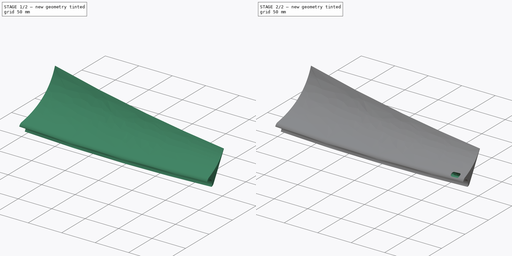
[diagram: build sequence overview — one tinted view per stage of 2, left to right]
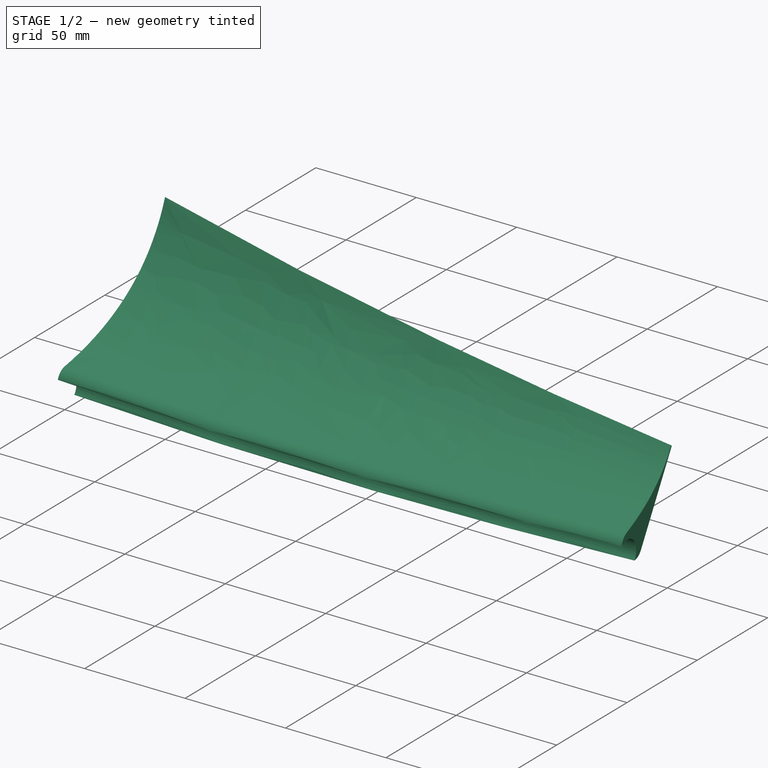
[diagram: stage 1 of 2 — iso view after this stage's code; geometry added in this stage tinted green]
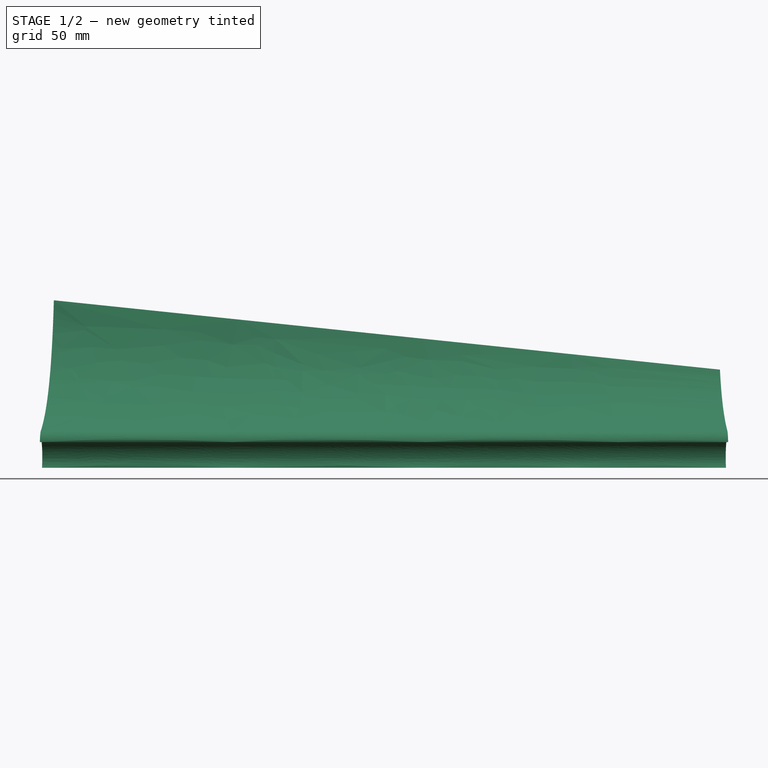
[diagram: stage 1 of 2 — front view after this stage's code; geometry added in this stage tinted green]
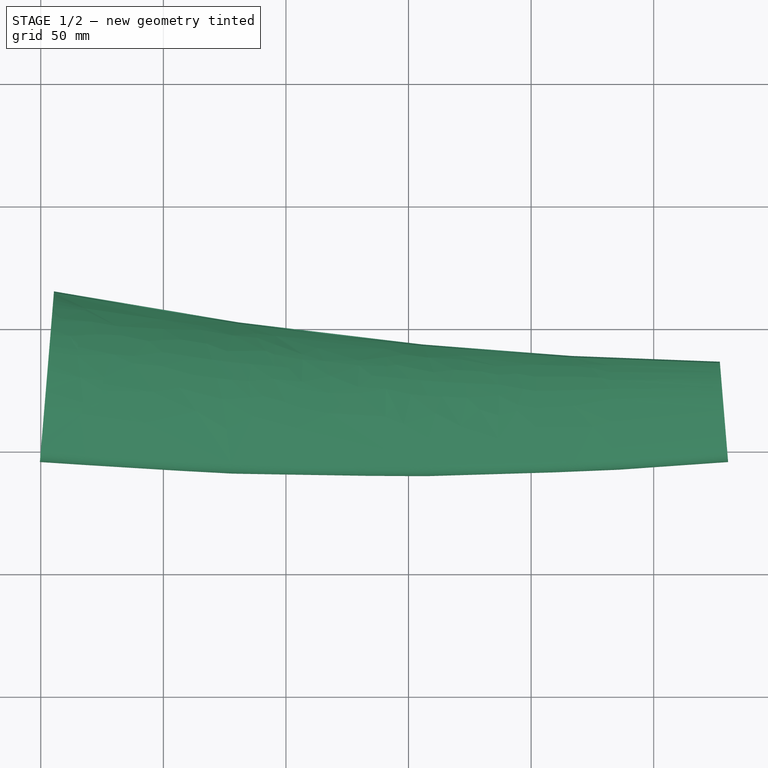
[diagram: stage 1 of 2 — top view after this stage's code; geometry added in this stage tinted green]
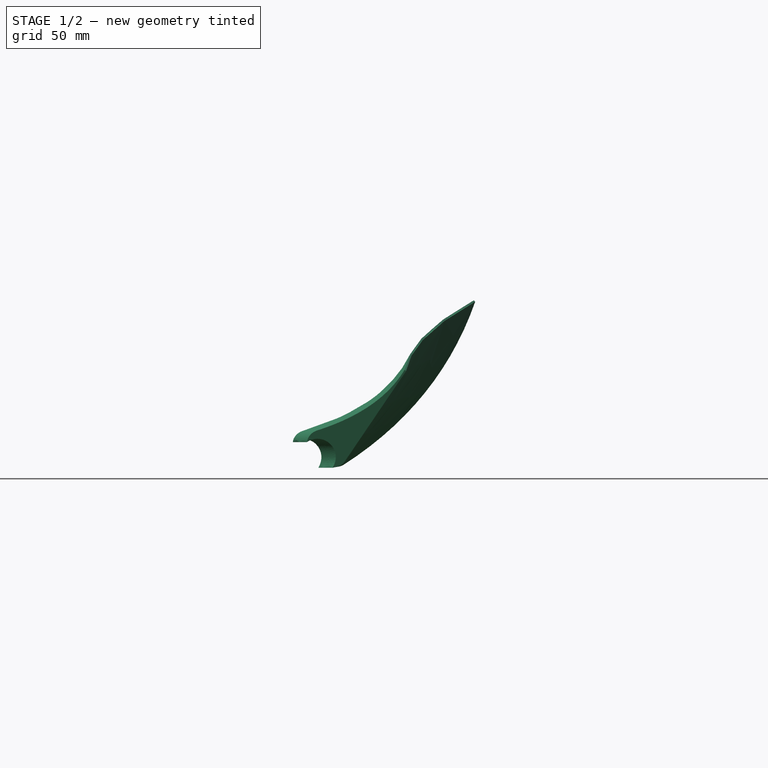
[diagram: stage 1 of 2 — right view after this stage's code; geometry added in this stage tinted green]
FCSTD DOCUMENT  (FreeCAD 0.22R38314 (Git))
Label: Radial _Airfoil_Lower
License: All rights reserved
LicenseURL: https://en.wikipedia.org/wiki/All_rights_reserved
objects: Sketcher::SketchObject×4, PartDesign::Plane×3, PartDesign::AdditivePipe×1, PartDesign::Fillet×1, PartDesign::SubtractivePipe×1, PartDesign::Body×1
note: 17 computed .brp shape members not serialized (recipe doc carries the construction recipe); baked Part::Feature solids carry a one-line shape summary decoded from their .brp

FEATURE [Sketcher::SketchObject] Sketch  label="Radial Guide"
  AttachmentSupport = -> [XY_Plane]
  FullyConstrained = false
  MapMode = 5
  sketch-geometry (1):
    g0: ArcOfCircle CenterX=140 CenterY=1671.72 CenterZ=0 NormalX=0 NormalY=0 NormalZ=1 AngleXU=0 Radius=1677.57 StartAngle=4.62884 EndAngle=4.79594
  constraints (4):
    c: Coincident(g0,g-1)
    c: PointOnObject(g0,g-1)
    c: DistanceX(g0,g0) = 280
    c: Distance(g0,g-1) = -5.85199
FEATURE [PartDesign::Plane] DatumPlane  label="InnerProfileDatum"
  AttachmentSupport = -> [Sketch]
  Length = 87.045
  MapMode = 7
  Placement = pos=(-7.11e-13,2.27e-13,0) rot=(-0.545203,0.59277,0.59277;4.1399rad)
  ResizeMode = 0
  Width = 62.2322
FEATURE [Sketcher::SketchObject] Sketch001  label="InnerProfileSketch"
  AttachmentSupport = -> [DatumPlane]
  FullyConstrained = true
  MapMode = 5
  Placement = pos=(-7.11e-13,2.27e-13,0) rot=(-0.545203,0.59277,0.59277;4.1399rad)
  sketch-geometry (25):
    g0: Circle CenterX=0 CenterY=0 CenterZ=0 NormalX=0 NormalY=0 NormalZ=1 AngleXU=0 Radius=7.5
    g1: ArcOfCircle CenterX=0 CenterY=0 CenterZ=0 NormalX=0 NormalY=0 NormalZ=1 AngleXU=0 Radius=7.5 StartAngle=0.959931 EndAngle=3.75246
    g2: LineSegment StartX=-5.3033 StartY=5.3033 StartZ=0 EndX=-7.42462 EndY=7.42462 EndZ=0
    g3: LineSegment StartX=-7.42462 StartY=7.42462 StartZ=0 EndX=-63.9932 EndY=63.9932 EndZ=0
    g4: LineSegment StartX=-35.7089 StartY=35.7089 StartZ=0 EndX=-49.851 EndY=21.5668 EndZ=0
    g5: LineSegment StartX=6.02255 StartY=8.6011 StartZ=0 EndX=4.30182 EndY=6.14364 EndZ=0
    g6: LineSegment StartX=-6.14364 StartY=-4.30182 StartZ=0 EndX=-8.6011 EndY=-6.02255 EndZ=0
    g7: LineSegment StartX=4.30182 StartY=6.14364 StartZ=0 EndX=3.64908 EndY=9.84552 EndZ=0
    g8: LineSegment StartX=-6.14364 StartY=-4.30182 StartZ=0 EndX=-9.84552 EndY=-3.64908 EndZ=0
    g9: ArcOfCircle CenterX=0 CenterY=0 CenterZ=0 NormalX=0 NormalY=0 NormalZ=1 AngleXU=0 Radius=10.5 StartAngle=0.959931 EndAngle=1.21586
    g10: ArcOfCircle CenterX=0 CenterY=0 CenterZ=0 NormalX=0 NormalY=0 NormalZ=1 AngleXU=0 Radius=10.5 StartAngle=1.21586 EndAngle=3.49653
    g11: ArcOfCircle CenterX=0 CenterY=0 CenterZ=0 NormalX=0 NormalY=0 NormalZ=1 AngleXU=0 Radius=10.5 StartAngle=3.49653 EndAngle=3.75246
    g12: LineSegment StartX=-63.9932 StartY=63.9932 StartZ=0 EndX=-64.5588 EndY=63.4275 EndZ=0
    g13: Circle CenterX=3.64908 CenterY=9.84552 CenterZ=0 NormalX=0 NormalY=0 NormalZ=1 AngleXU=0 Radius=1
    g14: Circle CenterX=-49.851 CenterY=21.5668 CenterZ=0 NormalX=0 NormalY=0 NormalZ=1 AngleXU=0 Radius=1
    g15: Circle CenterX=-63.9932 CenterY=63.9932 CenterZ=0 NormalX=0 NormalY=0 NormalZ=1 AngleXU=0 Radius=1
    g16: BSplineCurve PolesCount=3 KnotsCount=2 Degree=2 IsPeriodic=0
    g17: GeomPoint X=3.64908 Y=9.84552 Z=0
    g18: GeomPoint X=-63.9932 Y=63.9932 Z=0
    g19: Circle CenterX=-9.84552 CenterY=-3.64908 CenterZ=0 NormalX=0 NormalY=0 NormalZ=1 AngleXU=0 Radius=1
    g20: Circle CenterX=-49.851 CenterY=21.5668 CenterZ=0 NormalX=0 NormalY=0 NormalZ=1 AngleXU=0 Radius=1
    g21: Circle CenterX=-64.5588 CenterY=63.4275 CenterZ=0 NormalX=0 NormalY=0 NormalZ=1 AngleXU=0 Radius=1
    g22: BSplineCurve PolesCount=3 KnotsCount=2 Degree=2 IsPeriodic=0
    g23: GeomPoint X=-9.84552 Y=-3.64908 Z=0
    g24: GeomPoint X=-64.5588 Y=63.4275 Z=0
  constraints (59):
    c: Coincident(g0,g-1)
    c: Diameter(g0) = 15
    c: Coincident(g1,g0)
    c: PointOnObject(g1,g0)
    c: Angle(g1) = 2.79253
    c: Coincident(g9,g0)
    c: PointOnObject(g2,g1)
    c: Perpendicular(g1,g2)
    c: Angle(g-2,g2) = 0.785398
    c: Coincident(g3,g2)
    c: Parallel(g2,g3)
    c: Distance(g3,g3) = 80
    c: Symmetric(g3,g3,g4)
    c: Perpendicular(g3,g4)
    c: Distance(g4,g4) = 20
    c: Coincident(g5,g9)
    c: Coincident(g5,g1)
    c: Coincident(g6,g1)
    c: Coincident(g6,g11)
    c: Perpendicular(g1,g6)
    c: Perpendicular(g1,g5)
    c: Angle(g5,g2) = 1.39626
    c: Distance(g5,g5) = 3
    c: Coincident(g7,g1)
    c: Coincident(g8,g1)
    c: Angle(g8,g6) = 0.785398
    c: Angle(g5,g7) = 0.785398
    c: Coincident(g9,g10)
    c: Coincident(g9,g10)
    c: Coincident(g10,g11)
    c: Coincident(g10,g11)
    c: PointOnObject(g2,g10)
    c: Coincident(g10,g8)
    c: Coincident(g9,g7)
    c: Coincident(g12,g3)
    c: Perpendicular(g3,g12)
    c: Distance(g12,g12) = 0.8
    c: Weight(g13) = 1
    c: Equal(g13,g14)
    c: Equal(g13,g15)
    c: InternalAlignment(g13,g16)
    c: InternalAlignment(g14,g16)
    c: InternalAlignment(g15,g16)
    c: InternalAlignment(g17,g16)
    c: InternalAlignment(g18,g16)
    c: Coincident(g13,g7)
    c: Coincident(g14,g4)
    c: Coincident(g15,g3)
    c: Weight(g19) = 1
    c: Equal(g19,g20)
    c: Equal(g19,g21)
    c: InternalAlignment(g19,g22)
    c: InternalAlignment(g20,g22)
    c: InternalAlignment(g21,g22)
    c: InternalAlignment(g23,g22)
    c: InternalAlignment(g24,g22)
    c: Coincident(g19,g8)
    c: Coincident(g20,g4)
    c: Coincident(g21,g12)
FEATURE [PartDesign::Plane] DatumPlane001  label="OuterProfileDatum"
  AttachmentSupport = -> [Sketch]
  Length = 87.045
  MapMode = 7
  Placement = pos=(280,2.274e-13,0) rot=(0.609496,-0.560587,-0.560587;2.04685rad)
  ResizeMode = 0
  Width = 62.2322
FEATURE [Sketcher::SketchObject] Sketch002  label="OuterProfileSketch"
  AttachmentSupport = -> [DatumPlane001]
  FullyConstrained = true
  MapMode = 5
  Placement = pos=(280,2.274e-13,0) rot=(0.609496,-0.560587,-0.560587;2.04685rad)
  sketch-geometry (25):
    g0: Circle CenterX=0 CenterY=0 CenterZ=0 NormalX=0 NormalY=0 NormalZ=1 AngleXU=0 Radius=7.5
    g1: ArcOfCircle CenterX=0 CenterY=0 CenterZ=0 NormalX=0 NormalY=0 NormalZ=1 AngleXU=0 Radius=7.5 StartAngle=0.959931 EndAngle=3.75246
    g2: LineSegment StartX=-5.3033 StartY=5.3033 StartZ=0 EndX=-7.42462 EndY=7.42462 EndZ=0
    g3: LineSegment StartX=-7.42462 StartY=7.42462 StartZ=0 EndX=-35.7089 EndY=35.7089 EndZ=0
    g4: LineSegment StartX=-21.5668 StartY=21.5668 StartZ=0 EndX=-25.1023 EndY=18.0312 EndZ=0
    g5: LineSegment StartX=6.02255 StartY=8.6011 StartZ=0 EndX=4.30182 EndY=6.14364 EndZ=0
    g6: LineSegment StartX=-6.14364 StartY=-4.30183 StartZ=0 EndX=-8.60109 EndY=-6.02256 EndZ=0
    g7: LineSegment StartX=4.30182 StartY=6.14364 StartZ=0 EndX=3.64908 EndY=9.84552 EndZ=0
    g8: LineSegment StartX=-6.14364 StartY=-4.30183 StartZ=0 EndX=-9.84551 EndY=-3.64909 EndZ=0
    g9: ArcOfCircle CenterX=0 CenterY=0 CenterZ=0 NormalX=0 NormalY=0 NormalZ=1 AngleXU=0 Radius=10.5 StartAngle=0.959931 EndAngle=1.21586
    g10: ArcOfCircle CenterX=0 CenterY=0 CenterZ=0 NormalX=0 NormalY=0 NormalZ=1 AngleXU=0 Radius=10.5 StartAngle=1.21586 EndAngle=3.49653
    g11: ArcOfCircle CenterX=0 CenterY=0 CenterZ=0 NormalX=0 NormalY=0 NormalZ=1 AngleXU=0 Radius=10.5 StartAngle=3.49653 EndAngle=3.75246
    g12: LineSegment StartX=-35.7089 StartY=35.7089 StartZ=0 EndX=-36.2746 EndY=35.1432 EndZ=0
    g13: Circle CenterX=3.64908 CenterY=9.84552 CenterZ=0 NormalX=0 NormalY=0 NormalZ=1 AngleXU=0 Radius=1
    g14: Circle CenterX=-25.1023 CenterY=18.0312 CenterZ=0 NormalX=0 NormalY=0 NormalZ=1 AngleXU=0 Radius=1
    g15: Circle CenterX=-35.7089 CenterY=35.7089 CenterZ=0 NormalX=0 NormalY=0 NormalZ=1 AngleXU=0 Radius=1
    g16: BSplineCurve PolesCount=3 KnotsCount=2 Degree=2 IsPeriodic=0
    g17: GeomPoint X=3.64908 Y=9.84552 Z=0
    g18: GeomPoint X=-35.7089 Y=35.7089 Z=0
    g19: Circle CenterX=-9.84551 CenterY=-3.64909 CenterZ=0 NormalX=0 NormalY=0 NormalZ=1 AngleXU=0 Radius=1
    g20: Circle CenterX=-25.1023 CenterY=18.0312 CenterZ=0 NormalX=0 NormalY=0 NormalZ=1 AngleXU=0 Radius=1
    g21: Circle CenterX=-36.2746 CenterY=35.1432 CenterZ=0 NormalX=0 NormalY=0 NormalZ=1 AngleXU=0 Radius=1
    g22: BSplineCurve PolesCount=3 KnotsCount=2 Degree=2 IsPeriodic=0
    g23: GeomPoint X=-9.84551 Y=-3.64909 Z=0
    g24: GeomPoint X=-36.2746 Y=35.1432 Z=0
  constraints (59):
    c: Coincident(g0,g-1)
    c: Diameter(g0) = 15
    c: Coincident(g1,g0)
    c: PointOnObject(g1,g0)
    c: Angle(g1) = 2.79253
    c: Coincident(g9,g0)
    c: PointOnObject(g2,g1)
    c: Perpendicular(g1,g2)
    c: Angle(g-2,g2) = 0.785398
    c: Coincident(g3,g2)
    c: Parallel(g2,g3)
    c: Distance(g3,g3) = 40
    c: Symmetric(g3,g3,g4)
    c: Perpendicular(g3,g4)
    c: Distance(g4,g4) = 5
    c: Coincident(g5,g9)
    c: Coincident(g5,g1)
    c: Coincident(g6,g1)
    c: Coincident(g6,g11)
    c: Perpendicular(g1,g6)
    c: Perpendicular(g1,g5)
    c: Angle(g5,g2) = 1.39626
    c: Distance(g5,g5) = 3
    c: Coincident(g7,g1)
    c: Coincident(g8,g1)
    c: Angle(g8,g6) = 0.785398
    c: Angle(g5,g7) = 0.785398
    c: Coincident(g9,g10)
    c: Coincident(g9,g10)
    c: Coincident(g10,g11)
    c: Coincident(g10,g11)
    c: PointOnObject(g2,g10)
    c: Coincident(g10,g8)
    c: Coincident(g9,g7)
    c: Coincident(g12,g3)
    c: Perpendicular(g3,g12)
    c: Distance(g12,g12) = 0.8
    c: Weight(g13) = 1
    c: Equal(g13,g14)
    c: Equal(g13,g15)
    c: InternalAlignment(g13,g16)
    c: InternalAlignment(g14,g16)
    c: InternalAlignment(g15,g16)
    c: InternalAlignment(g17,g16)
    c: InternalAlignment(g18,g16)
    c: Coincident(g13,g7)
    c: Coincident(g14,g4)
    c: Coincident(g15,g3)
    c: Weight(g19) = 1
    c: Equal(g19,g20)
    c: Equal(g19,g21)
    c: InternalAlignment(g19,g22)
    c: InternalAlignment(g20,g22)
    c: InternalAlignment(g21,g22)
    c: InternalAlignment(g23,g22)
    c: InternalAlignment(g24,g22)
    c: Coincident(g19,g8)
    c: Coincident(g20,g4)
    c: Coincident(g21,g12)
FEATURE [PartDesign::AdditivePipe] AdditivePipe
  AuxilleryCurvelinear = true
  AuxillerySpineTangent = false
  Binormal = (0,0,0)
  Mode = 1
  Placement = pos=(-7.11e-13,2.27e-13,0) rot=(-0.545203,0.59277,0.59277;4.1399rad)
  Profile = -> Sketch001
  Refine = true
  Sections = -> [Sketch002]
  Spine = -> Sketch [Edge1]
  SpineTangent = false
  Suppressed = false
  Transformation = 1
  Transition = 0
FEATURE [PartDesign::Fillet] Fillet  label="FilletUpper"
  Base = -> AdditivePipe [Edge8,Edge17]
  BaseFeature = -> AdditivePipe
  Placement = pos=(-7.11e-13,2.27e-13,0) rot=(-0.545203,0.59277,0.59277;4.1399rad)
  Radius = 6
  Refine = true
  SupportTransform = false
  Suppressed = false
  UseAllEdges = false
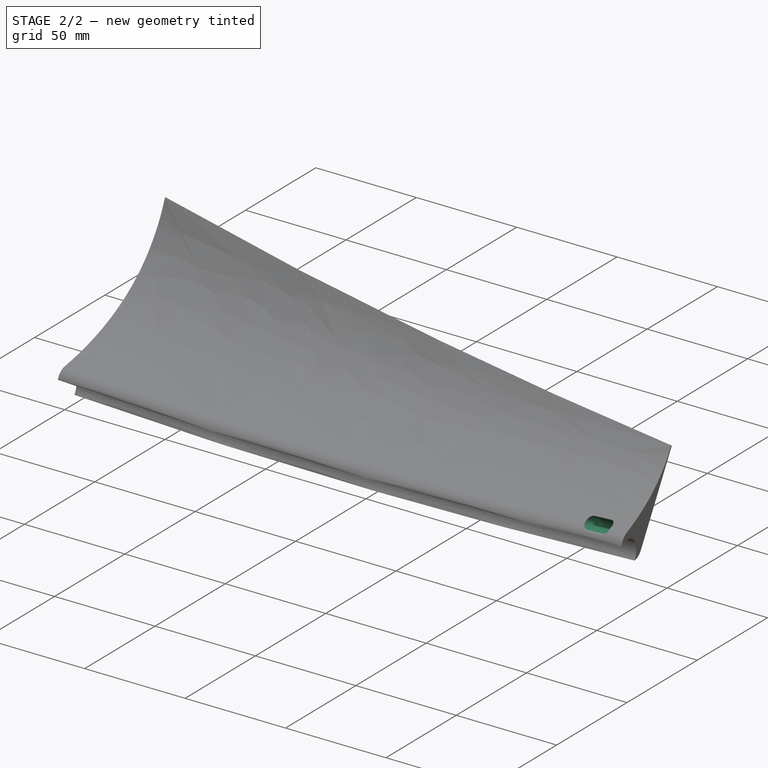
[diagram: stage 2 of 2 — iso view after this stage's code; geometry added in this stage tinted green]
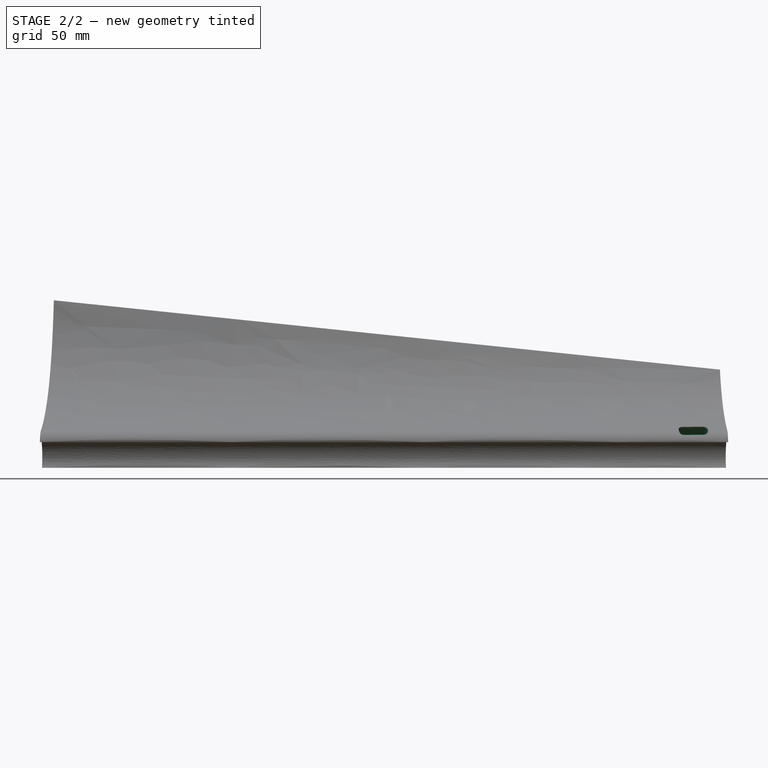
[diagram: stage 2 of 2 — front view after this stage's code; geometry added in this stage tinted green]
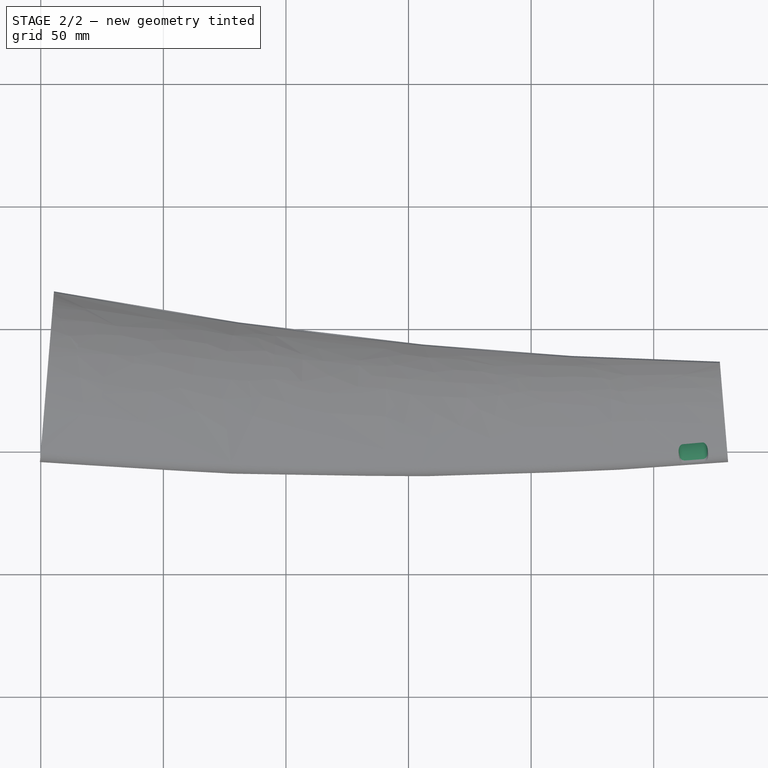
[diagram: stage 2 of 2 — top view after this stage's code; geometry added in this stage tinted green]
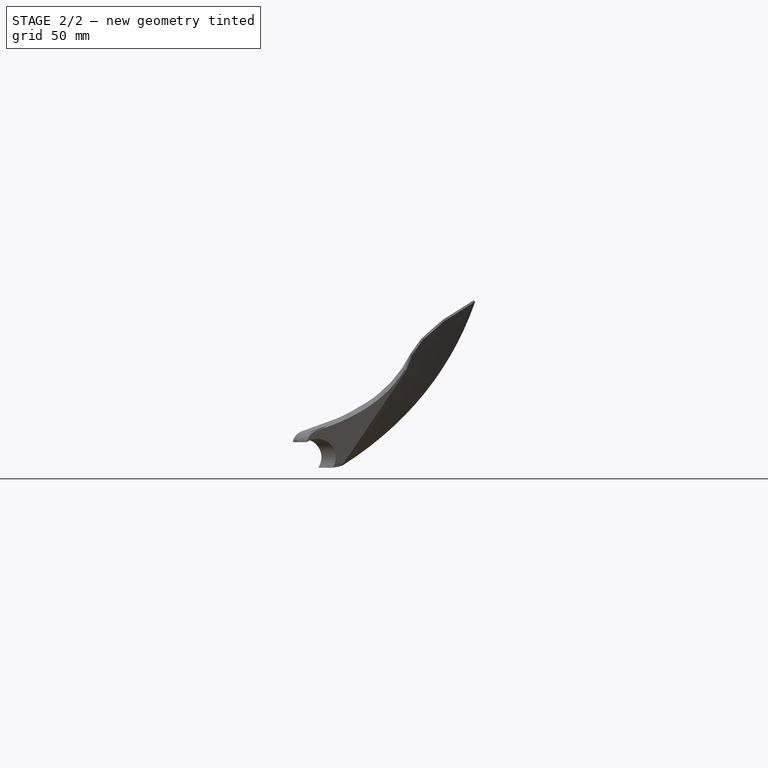
[diagram: stage 2 of 2 — right view after this stage's code; geometry added in this stage tinted green]
FEATURE [PartDesign::Plane] DatumPlane002
  AttachmentSupport = -> [Fillet]
  Length = 334.318
  MapMode = 13
  Placement = pos=(265.216,-1.85987,2.66182) rot=(0.999281,0.035036,0.014513;2.35666rad)
  ResizeMode = 0
  Width = 117.589
FEATURE [Sketcher::SketchObject] Sketch003
  AttachmentSupport = -> [DatumPlane002]
  ExternalGeometry = -> [Fillet]
  FullyConstrained = false
  MapMode = 5
  Placement = pos=(265.216,-1.85987,2.66182) rot=(0.999281,0.035036,0.014513;2.35666rad)
  sketch-geometry (4):
    g0: ArcOfCircle CenterX=-2.85668 CenterY=8.73998 CenterZ=0 NormalX=0 NormalY=0 NormalZ=1 AngleXU=0 Radius=2 StartAngle=1.5708 EndAngle=4.71239
    g1: ArcOfCircle CenterX=5.14332 CenterY=8.73998 CenterZ=0 NormalX=0 NormalY=0 NormalZ=1 AngleXU=0 Radius=2 StartAngle=4.71239 EndAngle=7.85398
    g2: LineSegment StartX=-2.85668 StartY=10.74 StartZ=0 EndX=5.14332 EndY=10.74 EndZ=0
    g3: LineSegment StartX=-2.85668 StartY=6.73998 StartZ=0 EndX=5.14332 EndY=6.73998 EndZ=0
  constraints (8):
    c: Tangent(g0,g2) = 1.5708
    c: Tangent(g0,g3) = -1.5708
    c: Tangent(g1,g2) = 1.5708
    c: Tangent(g1,g3) = -1.5708
    c: Equal(g0,g1)
    c: Horizontal(g2)
    c: DistanceX(g0,g1) = 8
    c: Distance(g2,g3) = 4
FEATURE [PartDesign::SubtractivePipe] SubtractivePipe
  AuxilleryCurvelinear = true
  AuxillerySpineTangent = false
  BaseFeature = -> Fillet
  Binormal = (0,0,0)
  Mode = 0
  Placement = pos=(-7.11e-13,2.27e-13,0) rot=(-0.545203,0.59277,0.59277;4.1399rad)
  Profile = -> Sketch003
  Refine = true
  Spine = -> Fillet [Edge17]
  SpineTangent = false
  Suppressed = false
  Transformation = 0
  Transition = 0
FEATURE [PartDesign::Body] Body
  AllowCompound = false
  Group = -> [Sketch,DatumPlane,Sketch001,DatumPlane001,Sketch002,AdditivePipe,Fillet,DatumPlane002,Sketch003,SubtractivePipe]
  Origin = -> Origin
  Tip = -> SubtractivePipe
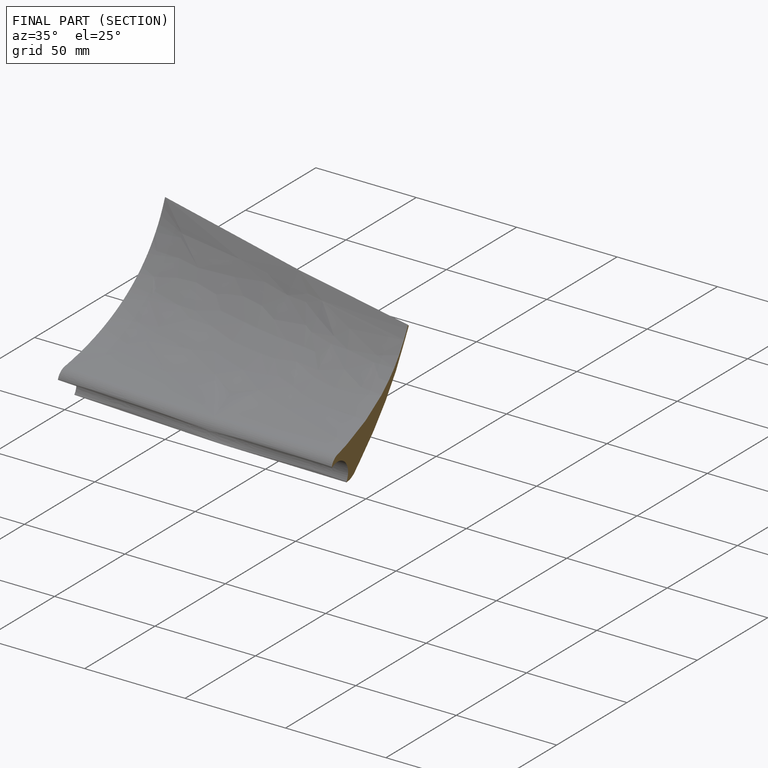
[diagram: finished part — half-section view (interior)]
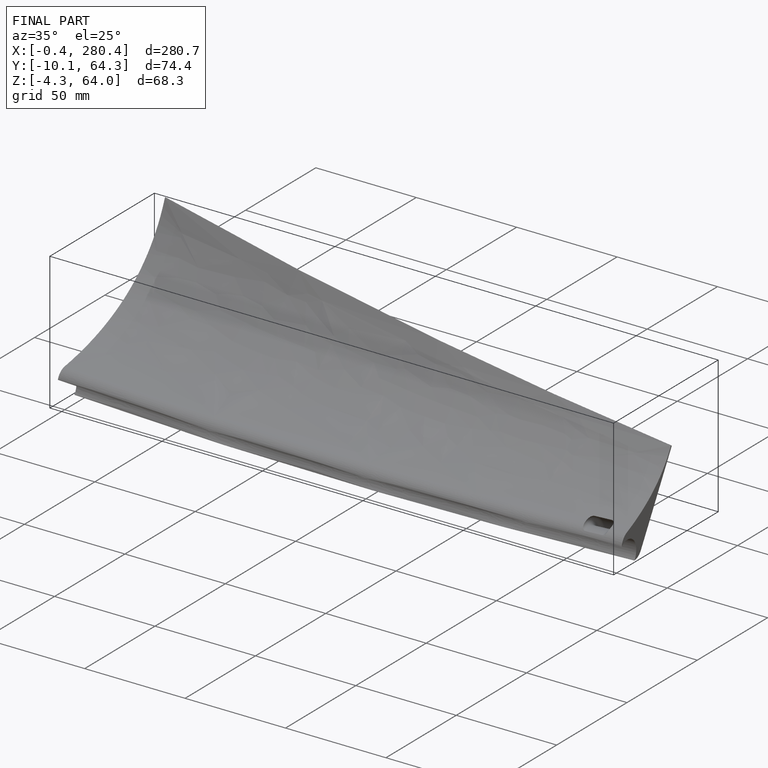
[diagram: finished part — iso view with bounding-box wireframe]
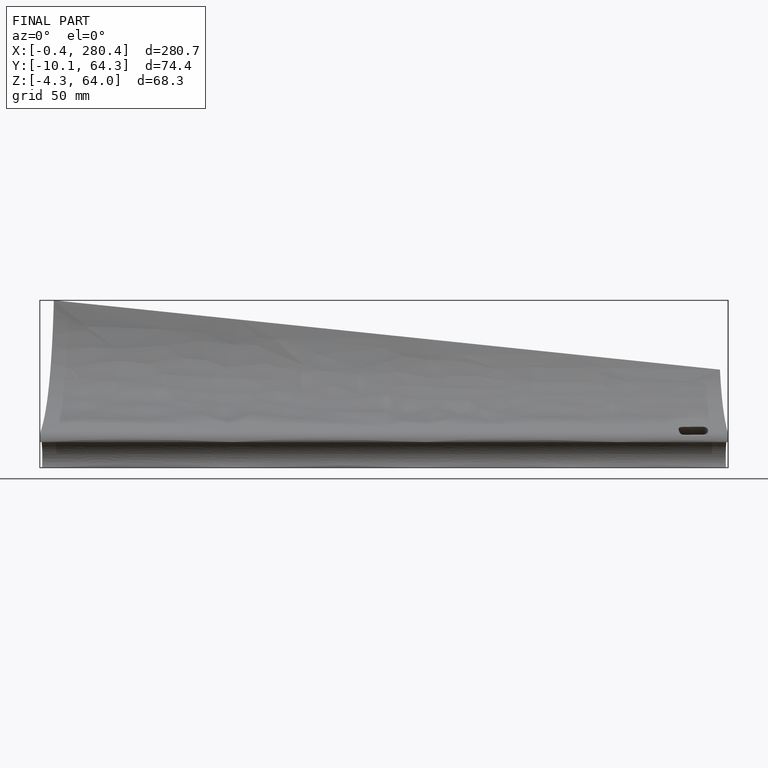
[diagram: finished part — front view with bounding-box wireframe]
